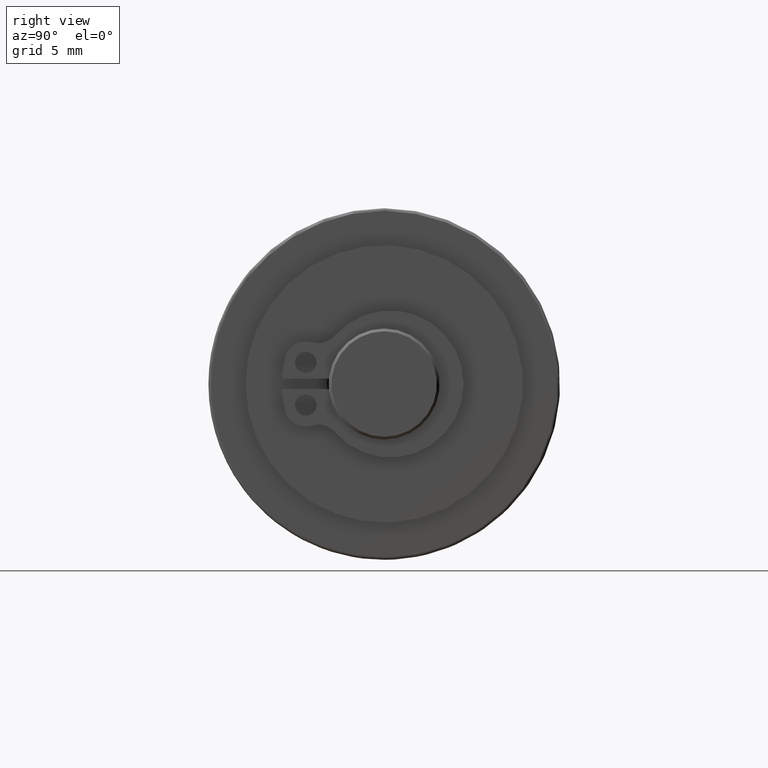
[diagram: clean part render]
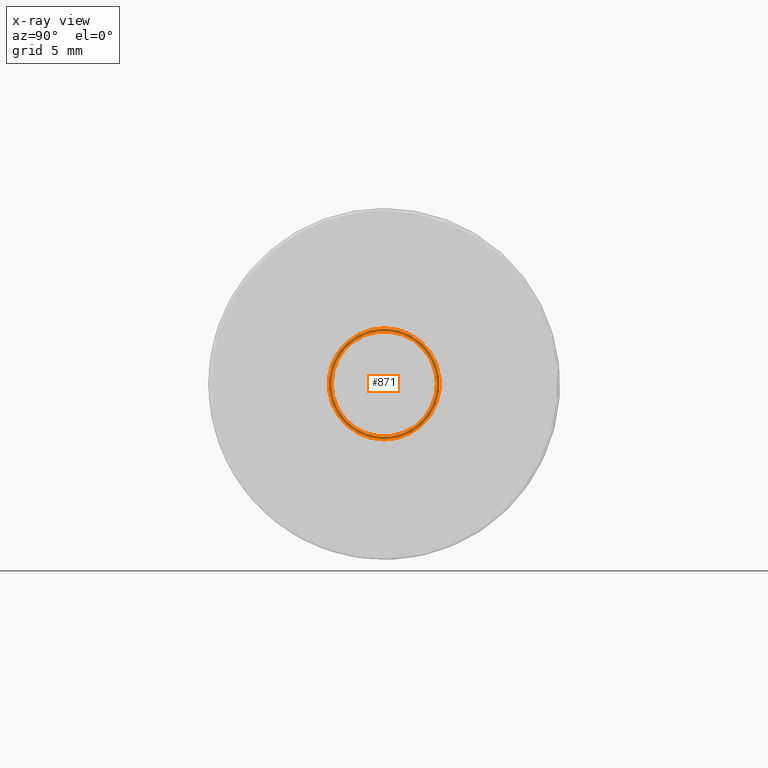
[diagram: x-ray — body ghosted, one internal face saturated and labeled with its STEP entity id]
A machine part, right view, then the same camera in x-ray: the body is ghosted and one INTERNAL B-rep face — a face not visible from any outside direction — is saturated and labeled: STEP entity #871.
In plain terms, the highlighted planar face has unit normal (-1, 0, 0).
Its self-contained STEP definition (entity closure, byte-faithful):
#62=FACE_BOUND('',#201,.T.);
#86=PLANE('',#1022);
#141=FACE_OUTER_BOUND('',#200,.T.);
#200=EDGE_LOOP('',(#694));
#201=EDGE_LOOP('',(#695));
#350=CIRCLE('',#1006,3.);
#355=CIRCLE('',#1023,2.85);
#419=VERTEX_POINT('',#1456);
#437=VERTEX_POINT('',#1537);
#505=EDGE_CURVE('',#419,#419,#350,.T.);
#532=EDGE_CURVE('',#437,#437,#355,.T.);
#694=ORIENTED_EDGE('',*,*,#505,.F.);
#695=ORIENTED_EDGE('',*,*,#532,.T.);
#871=ADVANCED_FACE('',(#141,#62),#86,.F.);
#1006=AXIS2_PLACEMENT_3D('',#1457,#1161,#1162);
#1022=AXIS2_PLACEMENT_3D('',#1536,#1203,#1204);
#1023=AXIS2_PLACEMENT_3D('',#1538,#1205,#1206);
#1161=DIRECTION('center_axis',(-1.,0.,0.));
#1162=DIRECTION('ref_axis',(0.,0.,1.));
#1203=DIRECTION('center_axis',(-1.,0.,0.));
#1204=DIRECTION('ref_axis',(0.,0.,1.));
#1205=DIRECTION('center_axis',(-1.,0.,0.));
#1206=DIRECTION('ref_axis',(0.,0.,1.));
#1456=CARTESIAN_POINT('',(13.2,3.67394039744206E-16,-3.));
#1457=CARTESIAN_POINT('Origin',(13.2,0.,0.));
#1536=CARTESIAN_POINT('Origin',(13.2,2.85,0.));
#1537=CARTESIAN_POINT('',(13.2,-2.85,3.49024337756996E-16));
#1538=CARTESIAN_POINT('Origin',(13.2,0.,0.));